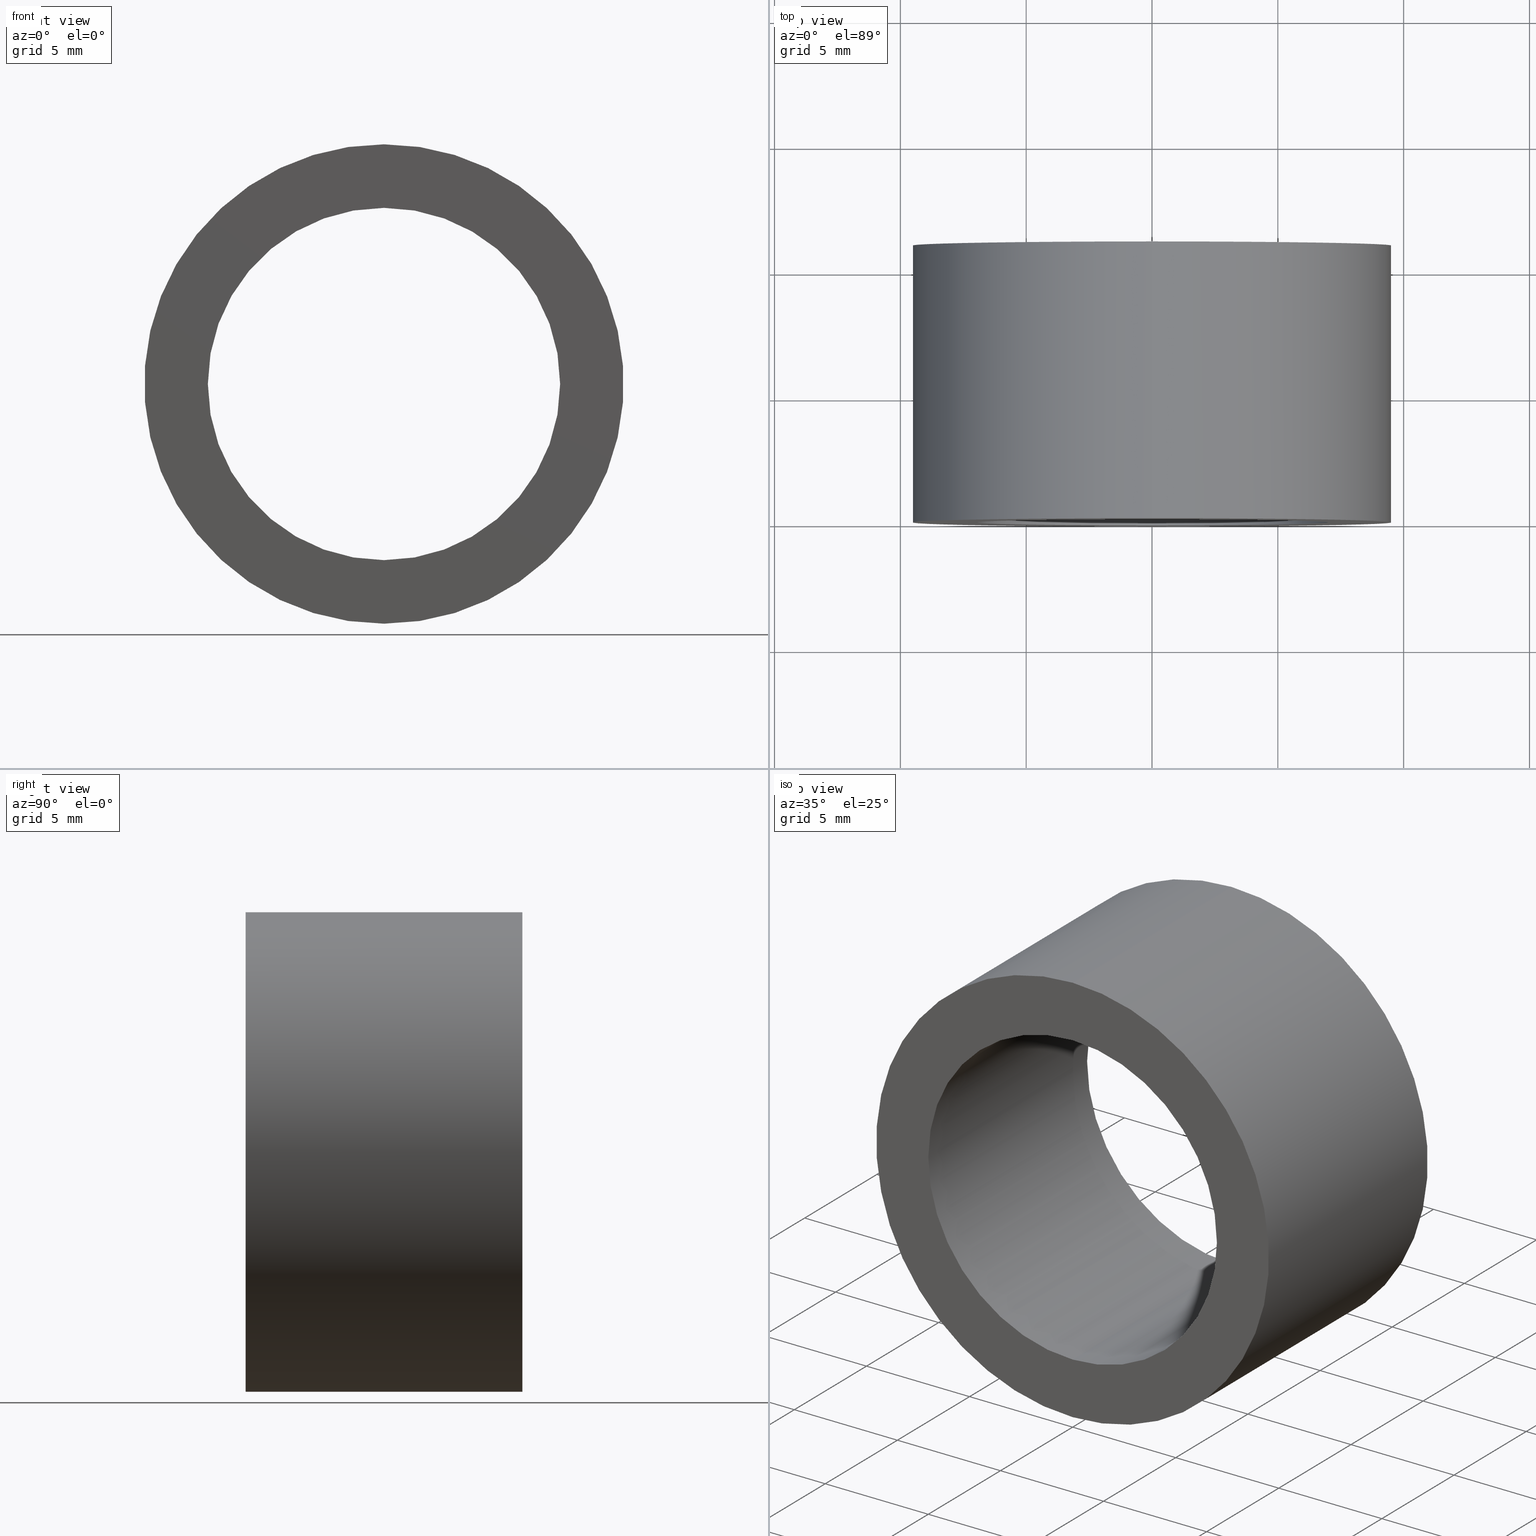
[diagram: canonical four-view strip — front | top / right | iso, engineering-drawing reading convention]
A machine part, canonical four-view strip (front | top / right | iso — engineering-drawing reading convention). The complete STEP part file that produces these views, byte-faithful:
ISO-10303-21;
HEADER;
FILE_DESCRIPTION (( 'STEP AP214' ),
    '1' );
FILE_NAME ('504091.STEP',
    '2019-09-05T09:23:47',
    ( 'user' ),
    ( '΢���й�' ),
    'SwSTEP 2.0',
    'SolidWorks 2016',
    '' );
FILE_SCHEMA (( 'AUTOMOTIVE_DESIGN' ));
ENDSEC;

DATA;
#1 = ORIENTED_EDGE ( 'NONE', *, *, #174, .F. ) ;
#2 = SURFACE_STYLE_FILL_AREA ( #81 ) ;
#3 = AXIS2_PLACEMENT_3D ( 'NONE', #116, #122, #118 ) ;
#4 = ADVANCED_FACE ( 'NONE', ( #136, #228 ), #101, .T. ) ;
#5 = PRESENTATION_STYLE_ASSIGNMENT (( #111 ) ) ;
#6 = CARTESIAN_POINT ( 'NONE',  ( 1.166476076187854000E-015, 0.0000000000000000000, 9.525000000000000400 ) ) ;
#7 = PRODUCT_DEFINITION_FORMATION_WITH_SPECIFIED_SOURCE ( '�κ�', '', #229, .NOT_KNOWN. ) ;
#8 = FACE_OUTER_BOUND ( 'NONE', #48, .T. ) ;
#9 = CARTESIAN_POINT ( 'NONE',  ( 0.0000000000000000000, 0.0000000000000000000, -7.000000000000000000 ) ) ;
#10 = DIRECTION ( 'NONE',  ( 0.0000000000000000000, 1.000000000000000000, 0.0000000000000000000 ) ) ;
#11 = DIRECTION ( 'NONE',  ( 0.0000000000000000000, 0.0000000000000000000, 1.000000000000000000 ) ) ;
#12 = ORIENTED_EDGE ( 'NONE', *, *, #231, .F. ) ;
#13 = CARTESIAN_POINT ( 'NONE',  ( 0.0000000000000000000, 11.00000000000000000, 0.0000000000000000000 ) ) ;
#14 = CARTESIAN_POINT ( 'NONE',  ( 0.0000000000000000000, 11.00000000000000000, -9.525000000000000400 ) ) ;
#15 = AXIS2_PLACEMENT_3D ( 'NONE', #73, #213, #218 ) ;
#16 = DIRECTION ( 'NONE',  ( 0.0000000000000000000, 0.0000000000000000000, 1.000000000000000000 ) ) ;
#17 = ORIENTED_EDGE ( 'NONE', *, *, #38, .T. ) ;
#18 = ORIENTED_EDGE ( 'NONE', *, *, #126, .T. ) ;
#19 = UNCERTAINTY_MEASURE_WITH_UNIT (LENGTH_MEASURE( 1.000000000000000100E-005 ), #131, 'distance_accuracy_value', 'NONE');
#20 = SURFACE_STYLE_FILL_AREA ( #75 ) ;
#21 = DIRECTION ( 'NONE',  ( -0.0000000000000000000, -1.000000000000000000, -0.0000000000000000000 ) ) ;
#22 = CARTESIAN_POINT ( 'NONE',  ( 0.0000000000000000000, 0.0000000000000000000, 0.0000000000000000000 ) ) ;
#23 = ORIENTED_EDGE ( 'NONE', *, *, #174, .T. ) ;
#24 = CYLINDRICAL_SURFACE ( 'NONE', #47, 7.000000000000000000 ) ;
#25 = CLOSED_SHELL ( 'NONE', ( #156, #133, #4, #165, #214, #152 ) ) ;
#26 = FILL_AREA_STYLE_COLOUR ( '', #77 ) ;
#27 = COLOUR_RGB ( '',1.000000000000000000, 1.000000000000000000, 1.000000000000000000 ) ;
#28 = DIRECTION ( 'NONE',  ( -0.0000000000000000000, -1.000000000000000000, -0.0000000000000000000 ) ) ;
#29 = CARTESIAN_POINT ( 'NONE',  ( 0.0000000000000000000, 11.00000000000000000, 0.0000000000000000000 ) ) ;
#30 = VERTEX_POINT ( 'NONE', #9 ) ;
#31 = FACE_OUTER_BOUND ( 'NONE', #195, .T. ) ;
#32 = MECHANICAL_DESIGN_GEOMETRIC_PRESENTATION_REPRESENTATION (  '', ( #56 ), #157 ) ;
#33 = AXIS2_PLACEMENT_3D ( 'NONE', #160, #42, #68 ) ;
#34 = SURFACE_SIDE_STYLE ('',( #100 ) ) ;
#35 = CIRCLE ( 'NONE', #51, 9.525000000000000400 ) ;
#36 = DIRECTION ( 'NONE',  ( 0.0000000000000000000, 0.0000000000000000000, -1.000000000000000000 ) ) ;
#37 = ORIENTED_EDGE ( 'NONE', *, *, #59, .T. ) ;
#38 = EDGE_CURVE ( 'NONE', #244, #132, #187, .T. ) ;
#39 = UNCERTAINTY_MEASURE_WITH_UNIT (LENGTH_MEASURE( 1.000000000000000100E-005 ), #223, 'distance_accuracy_value', 'NONE');
#40 = DIRECTION ( 'NONE',  ( 0.0000000000000000000, 1.000000000000000000, 0.0000000000000000000 ) ) ;
#41 = EDGE_CURVE ( 'NONE', #178, #30, #121, .T. ) ;
#42 = DIRECTION ( 'NONE',  ( -0.0000000000000000000, -1.000000000000000000, -0.0000000000000000000 ) ) ;
#43 = EDGE_LOOP ( 'NONE', ( #46, #106, #18, #12 ) ) ;
#44 = DIRECTION ( 'NONE',  ( -0.0000000000000000000, -1.000000000000000000, -0.0000000000000000000 ) ) ;
#45 = EDGE_CURVE ( 'NONE', #132, #49, #120, .T. ) ;
#46 = ORIENTED_EDGE ( 'NONE', *, *, #59, .F. ) ;
#47 = AXIS2_PLACEMENT_3D ( 'NONE', #96, #61, #36 ) ;
#48 = EDGE_LOOP ( 'NONE', ( #169, #201 ) ) ;
#49 = VERTEX_POINT ( 'NONE', #6 ) ;
#50 = LINE ( 'NONE', #175, #53 ) ;
#51 = AXIS2_PLACEMENT_3D ( 'NONE', #148, #215, #226 ) ;
#52 = ORIENTED_EDGE ( 'NONE', *, *, #207, .F. ) ;
#53 = VECTOR ( 'NONE', #44, 1000.000000000000000 ) ;
#54 = CARTESIAN_POINT ( 'NONE',  ( 0.0000000000000000000, 11.00000000000000000, 0.0000000000000000000 ) ) ;
#55 = DIRECTION ( 'NONE',  ( 0.0000000000000000000, 0.0000000000000000000, 1.000000000000000000 ) ) ;
#56 = STYLED_ITEM ( 'NONE', ( #91 ), #74 ) ;
#57 = PRESENTATION_LAYER_ASSIGNMENT (  '', '', ( #168 ) ) ;
#58 = PRODUCT_DEFINITION_SHAPE ( 'NONE', 'NONE',  #97 ) ;
#59 = EDGE_CURVE ( 'NONE', #132, #244, #200, .T. ) ;
#60 =( NAMED_UNIT ( * ) PLANE_ANGLE_UNIT ( ) SI_UNIT ( $, .RADIAN. ) );
#61 = DIRECTION ( 'NONE',  ( -0.0000000000000000000, -1.000000000000000000, -0.0000000000000000000 ) ) ;
#62 = MANIFOLD_SOLID_BREP ( '͹̨-����1', #25 ) ;
#63 = ORIENTED_EDGE ( 'NONE', *, *, #207, .T. ) ;
#64 = CIRCLE ( 'NONE', #199, 7.000000000000000000 ) ;
#65 =( NAMED_UNIT ( * ) PLANE_ANGLE_UNIT ( ) SI_UNIT ( $, .RADIAN. ) );
#66 = ORIENTED_EDGE ( 'NONE', *, *, #82, .F. ) ;
#67 = FILL_AREA_STYLE ('',( #141 ) ) ;
#68 = DIRECTION ( 'NONE',  ( 0.0000000000000000000, 0.0000000000000000000, -1.000000000000000000 ) ) ;
#69 =( GEOMETRIC_REPRESENTATION_CONTEXT ( 3 ) GLOBAL_UNCERTAINTY_ASSIGNED_CONTEXT ( ( #39 ) ) GLOBAL_UNIT_ASSIGNED_CONTEXT ( ( #223, #60, #205 ) ) REPRESENTATION_CONTEXT ( 'NONE', 'WORKASPACE' ) );
#70 = UNCERTAINTY_MEASURE_WITH_UNIT (LENGTH_MEASURE( 1.000000000000000100E-005 ), #234, 'distance_accuracy_value', 'NONE');
#71 = AXIS2_PLACEMENT_3D ( 'NONE', #72, #40, #125 ) ;
#72 = CARTESIAN_POINT ( 'NONE',  ( 0.0000000000000000000, 0.0000000000000000000, 0.0000000000000000000 ) ) ;
#73 = CARTESIAN_POINT ( 'NONE',  ( 0.0000000000000000000, 0.0000000000000000000, 0.0000000000000000000 ) ) ;
#74 = ADVANCED_BREP_SHAPE_REPRESENTATION ( '504091', ( #62, #225 ), #123 ) ;
#75 = FILL_AREA_STYLE ('',( #190 ) ) ;
#76 = CARTESIAN_POINT ( 'NONE',  ( 0.0000000000000000000, 11.00000000000000000, -7.000000000000000000 ) ) ;
#77 = COLOUR_RGB ( '',1.000000000000000000, 1.000000000000000000, 1.000000000000000000 ) ;
#78 = FILL_AREA_STYLE ('',( #26 ) ) ;
#79 = SURFACE_SIDE_STYLE ('',( #2 ) ) ;
#80 = DIRECTION ( 'NONE',  ( 0.0000000000000000000, -0.0000000000000000000, 1.000000000000000000 ) ) ;
#81 = FILL_AREA_STYLE ('',( #103 ) ) ;
#82 = EDGE_CURVE ( 'NONE', #99, #30, #232, .T. ) ;
#83 = SURFACE_STYLE_USAGE ( .BOTH. , #79 ) ;
#84 = CARTESIAN_POINT ( 'NONE',  ( 8.572527594031473200E-016, 11.00000000000000000, 7.000000000000000000 ) ) ;
#85 = CYLINDRICAL_SURFACE ( 'NONE', #33, 9.525000000000000400 ) ;
#86 = FACE_OUTER_BOUND ( 'NONE', #43, .T. ) ;
#87 = PRESENTATION_LAYER_ASSIGNMENT (  '', '', ( #204 ) ) ;
#88 = SURFACE_SIDE_STYLE ('',( #181 ) ) ;
#89 = PRODUCT_DEFINITION_CONTEXT ( 'detailed design', #233, 'design' ) ;
#90 = STYLED_ITEM ( 'NONE', ( #5 ), #62 ) ;
#91 = PRESENTATION_STYLE_ASSIGNMENT (( #112 ) ) ;
#92 = ORIENTED_EDGE ( 'NONE', *, *, #216, .T. ) ;
#93 = DIRECTION ( 'NONE',  ( -0.0000000000000000000, -1.000000000000000000, -0.0000000000000000000 ) ) ;
#94 = PRODUCT_RELATED_PRODUCT_CATEGORY ( 'part', '', ( #229 ) ) ;
#95 = ORIENTED_EDGE ( 'NONE', *, *, #117, .T. ) ;
#96 = CARTESIAN_POINT ( 'NONE',  ( 0.0000000000000000000, 11.00000000000000000, 0.0000000000000000000 ) ) ;
#97 = PRODUCT_DEFINITION ( 'δ֪', '', #7, #89 ) ;
#98 = DIRECTION ( 'NONE',  ( 0.0000000000000000000, 1.000000000000000000, 0.0000000000000000000 ) ) ;
#99 = VERTEX_POINT ( 'NONE', #217 ) ;
#100 = SURFACE_STYLE_FILL_AREA ( #78 ) ;
#101 = PLANE ( 'NONE',  #158 ) ;
#102 = AXIS2_PLACEMENT_3D ( 'NONE', #54, #144, #155 ) ;
#103 = FILL_AREA_STYLE_COLOUR ( '', #27 ) ;
#104 = EDGE_LOOP ( 'NONE', ( #1, #113 ) ) ;
#105 = AXIS2_PLACEMENT_3D ( 'NONE', #221, #219, #16 ) ;
#106 = ORIENTED_EDGE ( 'NONE', *, *, #45, .T. ) ;
#107 = VERTEX_POINT ( 'NONE', #237 ) ;
#108 = CIRCLE ( 'NONE', #119, 7.000000000000000000 ) ;
#109 = DIRECTION ( 'NONE',  ( 0.0000000000000000000, 0.0000000000000000000, -1.000000000000000000 ) ) ;
#110 = SHAPE_DEFINITION_REPRESENTATION ( #58, #74 ) ;
#111 = SURFACE_STYLE_USAGE ( .BOTH. , #88 ) ;
#112 = SURFACE_STYLE_USAGE ( .BOTH. , #34 ) ;
#113 = ORIENTED_EDGE ( 'NONE', *, *, #216, .F. ) ;
#114 = AXIS2_PLACEMENT_3D ( 'NONE', #29, #241, #147 ) ;
#115 = ORIENTED_EDGE ( 'NONE', *, *, #45, .F. ) ;
#116 = CARTESIAN_POINT ( 'NONE',  ( 0.0000000000000000000, 11.00000000000000000, 0.0000000000000000000 ) ) ;
#117 = EDGE_CURVE ( 'NONE', #149, #49, #35, .T. ) ;
#118 = DIRECTION ( 'NONE',  ( 0.0000000000000000000, 0.0000000000000000000, -1.000000000000000000 ) ) ;
#119 = AXIS2_PLACEMENT_3D ( 'NONE', #13, #98, #55 ) ;
#120 = LINE ( 'NONE', #185, #150 ) ;
#121 = LINE ( 'NONE', #76, #220 ) ;
#122 = DIRECTION ( 'NONE',  ( -0.0000000000000000000, -1.000000000000000000, -0.0000000000000000000 ) ) ;
#123 =( GEOMETRIC_REPRESENTATION_CONTEXT ( 3 ) GLOBAL_UNCERTAINTY_ASSIGNED_CONTEXT ( ( #180 ) ) GLOBAL_UNIT_ASSIGNED_CONTEXT ( ( #173, #242, #239 ) ) REPRESENTATION_CONTEXT ( 'NONE', 'WORKASPACE' ) );
#124 = LINE ( 'NONE', #84, #154 ) ;
#125 = DIRECTION ( 'NONE',  ( 0.0000000000000000000, -0.0000000000000000000, 1.000000000000000000 ) ) ;
#126 = EDGE_CURVE ( 'NONE', #49, #149, #161, .T. ) ;
#127 = ORIENTED_EDGE ( 'NONE', *, *, #82, .T. ) ;
#128 = ORIENTED_EDGE ( 'NONE', *, *, #231, .T. ) ;
#129 = PRODUCT_CONTEXT ( 'NONE', #176, 'mechanical' ) ;
#130 = PRESENTATION_LAYER_ASSIGNMENT (  '', '', ( #56 ) ) ;
#131 =( LENGTH_UNIT ( ) NAMED_UNIT ( * ) SI_UNIT ( .MILLI., .METRE. ) );
#132 = VERTEX_POINT ( 'NONE', #198 ) ;
#133 = ADVANCED_FACE ( 'NONE', ( #86 ), #183, .T. ) ;
#134 = EDGE_LOOP ( 'NONE', ( #184, #92, #189, #66 ) ) ;
#135 =( NAMED_UNIT ( * ) SI_UNIT ( $, .STERADIAN. ) SOLID_ANGLE_UNIT ( ) );
#136 = FACE_OUTER_BOUND ( 'NONE', #166, .T. ) ;
#137 = DIRECTION ( 'NONE',  ( 0.0000000000000000000, 0.0000000000000000000, 1.000000000000000000 ) ) ;
#138 = CARTESIAN_POINT ( 'NONE',  ( 0.0000000000000000000, 11.00000000000000000, 0.0000000000000000000 ) ) ;
#139 =( NAMED_UNIT ( * ) PLANE_ANGLE_UNIT ( ) SI_UNIT ( $, .RADIAN. ) );
#140 = PRESENTATION_STYLE_ASSIGNMENT (( #83 ) ) ;
#141 = FILL_AREA_STYLE_COLOUR ( '', #162 ) ;
#142 = FACE_BOUND ( 'NONE', #159, .T. ) ;
#143 = AXIS2_PLACEMENT_3D ( 'NONE', #151, #10, #192 ) ;
#144 = DIRECTION ( 'NONE',  ( 0.0000000000000000000, 1.000000000000000000, 0.0000000000000000000 ) ) ;
#145 = ORIENTED_EDGE ( 'NONE', *, *, #212, .T. ) ;
#146 = FACE_OUTER_BOUND ( 'NONE', #134, .T. ) ;
#147 = DIRECTION ( 'NONE',  ( 0.0000000000000000000, 0.0000000000000000000, 1.000000000000000000 ) ) ;
#148 = CARTESIAN_POINT ( 'NONE',  ( 0.0000000000000000000, 0.0000000000000000000, 0.0000000000000000000 ) ) ;
#149 = VERTEX_POINT ( 'NONE', #210 ) ;
#150 = VECTOR ( 'NONE', #21, 1000.000000000000000 ) ;
#151 = CARTESIAN_POINT ( 'NONE',  ( 0.0000000000000000000, 11.00000000000000000, 0.0000000000000000000 ) ) ;
#152 = ADVANCED_FACE ( 'NONE', ( #146 ), #240, .F. ) ;
#153 = PLANE ( 'NONE',  #71 ) ;
#154 = VECTOR ( 'NONE', #93, 1000.000000000000000 ) ;
#155 = DIRECTION ( 'NONE',  ( 0.0000000000000000000, 0.0000000000000000000, 1.000000000000000000 ) ) ;
#156 = ADVANCED_FACE ( 'NONE', ( #31 ), #24, .F. ) ;
#157 =( GEOMETRIC_REPRESENTATION_CONTEXT ( 3 ) GLOBAL_UNCERTAINTY_ASSIGNED_CONTEXT ( ( #164 ) ) GLOBAL_UNIT_ASSIGNED_CONTEXT ( ( #203, #235, #191 ) ) REPRESENTATION_CONTEXT ( 'NONE', 'WORKASPACE' ) );
#158 = AXIS2_PLACEMENT_3D ( 'NONE', #194, #163, #80 ) ;
#159 = EDGE_LOOP ( 'NONE', ( #63, #127 ) ) ;
#160 = CARTESIAN_POINT ( 'NONE',  ( 0.0000000000000000000, 11.00000000000000000, 0.0000000000000000000 ) ) ;
#161 = CIRCLE ( 'NONE', #105, 9.525000000000000400 ) ;
#162 = COLOUR_RGB ( '',1.000000000000000000, 1.000000000000000000, 1.000000000000000000 ) ;
#163 = DIRECTION ( 'NONE',  ( 0.0000000000000000000, 1.000000000000000000, 0.0000000000000000000 ) ) ;
#164 = UNCERTAINTY_MEASURE_WITH_UNIT (LENGTH_MEASURE( 1.000000000000000100E-005 ), #203, 'distance_accuracy_value', 'NONE');
#165 = ADVANCED_FACE ( 'NONE', ( #8, #142 ), #153, .F. ) ;
#166 = EDGE_LOOP ( 'NONE', ( #17, #37 ) ) ;
#167 = FACE_OUTER_BOUND ( 'NONE', #172, .T. ) ;
#168 = STYLED_ITEM ( 'NONE', ( #140 ), #156 ) ;
#169 = ORIENTED_EDGE ( 'NONE', *, *, #117, .F. ) ;
#170 =( GEOMETRIC_REPRESENTATION_CONTEXT ( 3 ) GLOBAL_UNCERTAINTY_ASSIGNED_CONTEXT ( ( #70 ) ) GLOBAL_UNIT_ASSIGNED_CONTEXT ( ( #234, #65, #227 ) ) REPRESENTATION_CONTEXT ( 'NONE', 'WORKASPACE' ) );
#171 = COLOUR_RGB ( '',1.000000000000000000, 1.000000000000000000, 1.000000000000000000 ) ;
#172 = EDGE_LOOP ( 'NONE', ( #115, #243, #128, #95 ) ) ;
#173 =( LENGTH_UNIT ( ) NAMED_UNIT ( * ) SI_UNIT ( .MILLI., .METRE. ) );
#174 = EDGE_CURVE ( 'NONE', #178, #107, #211, .T. ) ;
#175 = CARTESIAN_POINT ( 'NONE',  ( 0.0000000000000000000, 11.00000000000000000, -9.525000000000000400 ) ) ;
#176 = APPLICATION_CONTEXT ( 'automotive_design' ) ;
#177 = MECHANICAL_DESIGN_GEOMETRIC_PRESENTATION_REPRESENTATION (  '', ( #168 ), #197 ) ;
#178 = VERTEX_POINT ( 'NONE', #202 ) ;
#179 = MECHANICAL_DESIGN_GEOMETRIC_PRESENTATION_REPRESENTATION (  '', ( #90 ), #170 ) ;
#180 = UNCERTAINTY_MEASURE_WITH_UNIT (LENGTH_MEASURE( 1.000000000000000100E-005 ), #173, 'distance_accuracy_value', 'NONE');
#181 = SURFACE_STYLE_FILL_AREA ( #67 ) ;
#182 = SURFACE_STYLE_USAGE ( .BOTH. , #236 ) ;
#183 = CYLINDRICAL_SURFACE ( 'NONE', #193, 9.525000000000000400 ) ;
#184 = ORIENTED_EDGE ( 'NONE', *, *, #212, .F. ) ;
#185 = CARTESIAN_POINT ( 'NONE',  ( 1.166476076187854000E-015, 11.00000000000000000, 9.525000000000000400 ) ) ;
#186 = APPLICATION_PROTOCOL_DEFINITION ( 'draft international standard', 'automotive_design', 1998, #233 ) ;
#187 = CIRCLE ( 'NONE', #114, 9.525000000000000400 ) ;
#188 = ORIENTED_EDGE ( 'NONE', *, *, #41, .F. ) ;
#189 = ORIENTED_EDGE ( 'NONE', *, *, #41, .T. ) ;
#190 = FILL_AREA_STYLE_COLOUR ( '', #171 ) ;
#191 =( NAMED_UNIT ( * ) SI_UNIT ( $, .STERADIAN. ) SOLID_ANGLE_UNIT ( ) );
#192 = DIRECTION ( 'NONE',  ( 0.0000000000000000000, 0.0000000000000000000, 1.000000000000000000 ) ) ;
#193 = AXIS2_PLACEMENT_3D ( 'NONE', #138, #208, #109 ) ;
#194 = CARTESIAN_POINT ( 'NONE',  ( 0.0000000000000000000, 11.00000000000000000, 0.0000000000000000000 ) ) ;
#195 = EDGE_LOOP ( 'NONE', ( #23, #145, #52, #188 ) ) ;
#196 = PRESENTATION_STYLE_ASSIGNMENT (( #182 ) ) ;
#197 =( GEOMETRIC_REPRESENTATION_CONTEXT ( 3 ) GLOBAL_UNCERTAINTY_ASSIGNED_CONTEXT ( ( #19 ) ) GLOBAL_UNIT_ASSIGNED_CONTEXT ( ( #131, #139, #135 ) ) REPRESENTATION_CONTEXT ( 'NONE', 'WORKASPACE' ) );
#198 = CARTESIAN_POINT ( 'NONE',  ( 1.166476076187854000E-015, 11.00000000000000000, 9.525000000000000400 ) ) ;
#199 = AXIS2_PLACEMENT_3D ( 'NONE', #209, #230, #11 ) ;
#200 = CIRCLE ( 'NONE', #102, 9.525000000000000400 ) ;
#201 = ORIENTED_EDGE ( 'NONE', *, *, #126, .F. ) ;
#202 = CARTESIAN_POINT ( 'NONE',  ( 0.0000000000000000000, 11.00000000000000000, -7.000000000000000000 ) ) ;
#203 =( LENGTH_UNIT ( ) NAMED_UNIT ( * ) SI_UNIT ( .MILLI., .METRE. ) );
#204 = STYLED_ITEM ( 'NONE', ( #196 ), #152 ) ;
#205 =( NAMED_UNIT ( * ) SI_UNIT ( $, .STERADIAN. ) SOLID_ANGLE_UNIT ( ) );
#206 = APPLICATION_PROTOCOL_DEFINITION ( 'draft international standard', 'automotive_design', 1998, #176 ) ;
#207 = EDGE_CURVE ( 'NONE', #30, #99, #64, .T. ) ;
#208 = DIRECTION ( 'NONE',  ( -0.0000000000000000000, -1.000000000000000000, -0.0000000000000000000 ) ) ;
#209 = CARTESIAN_POINT ( 'NONE',  ( 0.0000000000000000000, 0.0000000000000000000, 0.0000000000000000000 ) ) ;
#210 = CARTESIAN_POINT ( 'NONE',  ( 0.0000000000000000000, 0.0000000000000000000, -9.525000000000000400 ) ) ;
#211 = CIRCLE ( 'NONE', #143, 7.000000000000000000 ) ;
#212 = EDGE_CURVE ( 'NONE', #107, #99, #124, .T. ) ;
#213 = DIRECTION ( 'NONE',  ( 0.0000000000000000000, 1.000000000000000000, 0.0000000000000000000 ) ) ;
#214 = ADVANCED_FACE ( 'NONE', ( #167 ), #85, .T. ) ;
#215 = DIRECTION ( 'NONE',  ( 0.0000000000000000000, 1.000000000000000000, 0.0000000000000000000 ) ) ;
#216 = EDGE_CURVE ( 'NONE', #107, #178, #108, .T. ) ;
#217 = CARTESIAN_POINT ( 'NONE',  ( 8.572527594031473200E-016, 0.0000000000000000000, 7.000000000000000000 ) ) ;
#218 = DIRECTION ( 'NONE',  ( 0.0000000000000000000, 0.0000000000000000000, 1.000000000000000000 ) ) ;
#219 = DIRECTION ( 'NONE',  ( 0.0000000000000000000, 1.000000000000000000, 0.0000000000000000000 ) ) ;
#220 = VECTOR ( 'NONE', #28, 1000.000000000000000 ) ;
#221 = CARTESIAN_POINT ( 'NONE',  ( 0.0000000000000000000, 0.0000000000000000000, 0.0000000000000000000 ) ) ;
#222 = PRESENTATION_LAYER_ASSIGNMENT (  '', '', ( #90 ) ) ;
#223 =( LENGTH_UNIT ( ) NAMED_UNIT ( * ) SI_UNIT ( .MILLI., .METRE. ) );
#224 = DIRECTION ( 'NONE',  ( 1.000000000000000000, 0.0000000000000000000, 0.0000000000000000000 ) ) ;
#225 = AXIS2_PLACEMENT_3D ( 'NONE', #22, #137, #224 ) ;
#226 = DIRECTION ( 'NONE',  ( 0.0000000000000000000, 0.0000000000000000000, 1.000000000000000000 ) ) ;
#227 =( NAMED_UNIT ( * ) SI_UNIT ( $, .STERADIAN. ) SOLID_ANGLE_UNIT ( ) );
#228 = FACE_BOUND ( 'NONE', #104, .T. ) ;
#229 = PRODUCT ( '504091', '504091', '', ( #129 ) ) ;
#230 = DIRECTION ( 'NONE',  ( 0.0000000000000000000, 1.000000000000000000, 0.0000000000000000000 ) ) ;
#231 = EDGE_CURVE ( 'NONE', #244, #149, #50, .T. ) ;
#232 = CIRCLE ( 'NONE', #15, 7.000000000000000000 ) ;
#233 = APPLICATION_CONTEXT ( 'automotive_design' ) ;
#234 =( LENGTH_UNIT ( ) NAMED_UNIT ( * ) SI_UNIT ( .MILLI., .METRE. ) );
#235 =( NAMED_UNIT ( * ) PLANE_ANGLE_UNIT ( ) SI_UNIT ( $, .RADIAN. ) );
#236 = SURFACE_SIDE_STYLE ('',( #20 ) ) ;
#237 = CARTESIAN_POINT ( 'NONE',  ( 8.572527594031473200E-016, 11.00000000000000000, 7.000000000000000000 ) ) ;
#238 = MECHANICAL_DESIGN_GEOMETRIC_PRESENTATION_REPRESENTATION (  '', ( #204 ), #69 ) ;
#239 =( NAMED_UNIT ( * ) SI_UNIT ( $, .STERADIAN. ) SOLID_ANGLE_UNIT ( ) );
#240 = CYLINDRICAL_SURFACE ( 'NONE', #3, 7.000000000000000000 ) ;
#241 = DIRECTION ( 'NONE',  ( 0.0000000000000000000, 1.000000000000000000, 0.0000000000000000000 ) ) ;
#242 =( NAMED_UNIT ( * ) PLANE_ANGLE_UNIT ( ) SI_UNIT ( $, .RADIAN. ) );
#243 = ORIENTED_EDGE ( 'NONE', *, *, #38, .F. ) ;
#244 = VERTEX_POINT ( 'NONE', #14 ) ;
ENDSEC;
END-ISO-10303-21;
